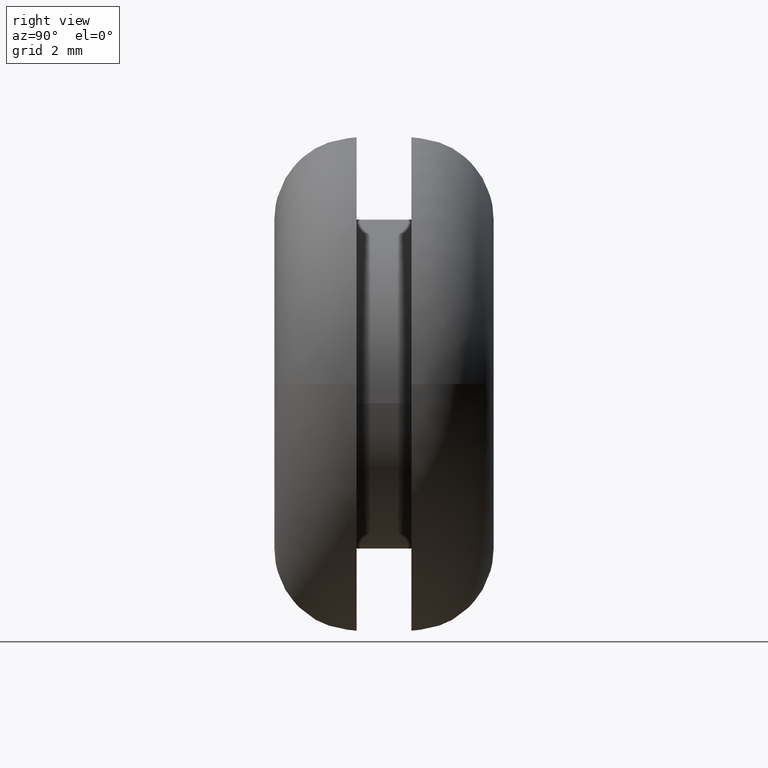
[diagram: clean part render]
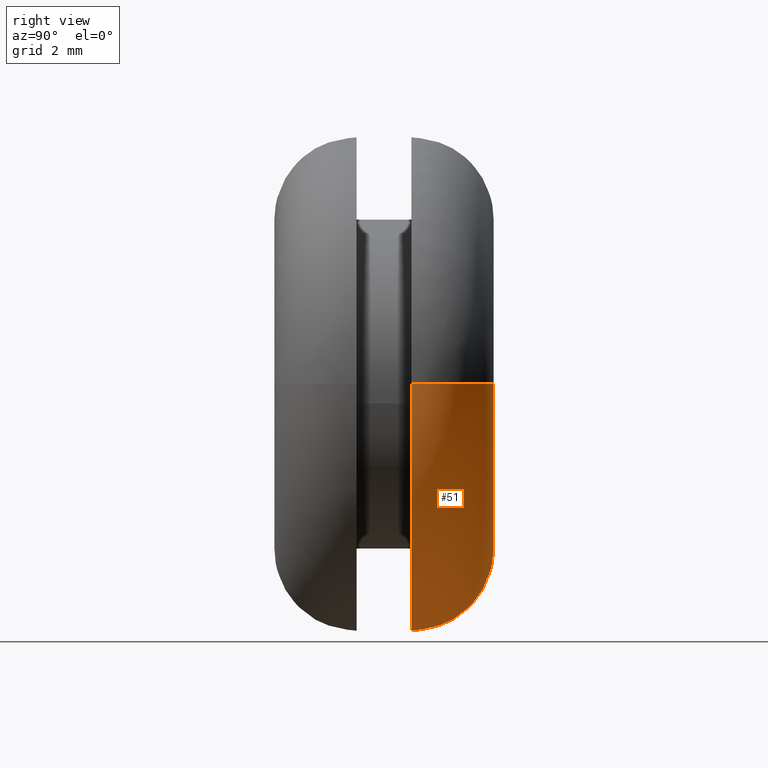
[diagram: same view with one face highlighted and labeled with its STEP entity id]
A machine part, right view. The second image highlights one B-rep face of the part: STEP entity #51.
In plain terms, the highlighted face is a freeform B-spline surface patch.
Its self-contained STEP definition (entity closure, byte-faithful):
#51=ADVANCED_FACE('',(#167),#166,.T.);
#166=( BOUNDED_SURFACE() B_SPLINE_SURFACE( 2,2,((#298,#299,#300,#301,#302),(#303,#304,#305,#306,#307),(#308,#309,#310,#311,#312),(#313,#314,#315,#316,#317),(#318,#319,#320,#321,#322)), .UNSPECIFIED.,.F.,.F.,.F.) B_SPLINE_SURFACE_WITH_KNOTS((3,2,3),(3,2,3),(-1.57079651073E+000,-1.04709932886E+000,2.94667014920E-004),(3.14159265359E+000,4.71238898038E+000,6.28318530718E+000), .UNSPECIFIED. ) GEOMETRIC_REPRESENTATION_ITEM() RATIONAL_B_SPLINE_SURFACE(((9.32988144219E-001,6.59722243544E-001,9.32988144219E-001,6.59722243544E-001,9.32988144219E-001),(9.32988120683E-001,6.59722226901E-001,9.32988120683E-001,6.59722226901E-001,9.32988120683E-001),(1.00000000000E+000,7.07106781187E-001,1.00000000000E+000,7.07106781187E-001,1.00000000000E+000),(8.65976288438E-001,6.12337705901E-001,8.65976288438E-001,6.12337705901E-001,8.65976288438E-001),(1.00000000000E+000,7.07106781187E-001,1.00000000000E+000,7.07106781187E-001,1.00000000000E+000))) REPRESENTATION_ITEM('') SURFACE() );
#167=FACE_OUTER_BOUND('',#323,.T.);
#298=CARTESIAN_POINT('',(5.99999943523E+000,8.00000000000E+000,-1.67660505305E-014));
#299=CARTESIAN_POINT('',(5.99999943523E+000,8.00000000000E+000,-5.99999943523E+000));
#300=CARTESIAN_POINT('',(2.12120991564E-014,8.00000000000E+000,-5.99999943523E+000));
#301=CARTESIAN_POINT('',(-5.99999943523E+000,8.00000000000E+000,-5.99999943523E+000));
#302=CARTESIAN_POINT('',(-5.99999943523E+000,8.00000000000E+000,-1.52965230442E-014));
#303=CARTESIAN_POINT('',(6.80400522884E+000,8.00000015136E+000,-1.68645080256E-014));
#304=CARTESIAN_POINT('',(6.80400522884E+000,8.00000015136E+000,-6.80400522884E+000));
#305=CARTESIAN_POINT('',(2.11136266308E-014,8.00000015136E+000,-6.80400522884E+000));
#306=CARTESIAN_POINT('',(-6.80400522884E+000,8.00000015136E+000,-6.80400522884E+000));
#307=CARTESIAN_POINT('',(-6.80400522884E+000,8.00000015136E+000,-1.51980624187E-014));
#308=CARTESIAN_POINT('',(7.50025518188E+000,7.59792886531E+000,-2.11076021331E-014));
#309=CARTESIAN_POINT('',(7.50025518188E+000,7.59792886531E+000,-7.50025518188E+000));
#310=CARTESIAN_POINT('',(5.67972409791E-014,7.59792886531E+000,-7.50025518188E+000));
#311=CARTESIAN_POINT('',(-7.50025518188E+000,7.59792886531E+000,-7.50025518188E+000));
#312=CARTESIAN_POINT('',(-7.50025518188E+000,7.59792886531E+000,-1.92706301029E-014));
#313=CARTESIAN_POINT('',(9.00051036377E+000,6.73155964296E+000,-3.02504737330E-014));
#314=CARTESIAN_POINT('',(9.00051036377E+000,6.73155964296E+000,-9.00051036377E+000));
#315=CARTESIAN_POINT('',(1.33687052031E-013,6.73155964296E+000,-9.00051036377E+000));
#316=CARTESIAN_POINT('',(-9.00051036377E+000,6.73155964296E+000,-9.00051036377E+000));
#317=CARTESIAN_POINT('',(-9.00051036377E+000,6.73155964296E+000,-2.80460572971E-014));
#318=CARTESIAN_POINT('',(8.99999986976E+000,4.99911599897E+000,-4.81656614688E-014));
#319=CARTESIAN_POINT('',(8.99999986976E+000,4.99911599897E+000,-8.99999986976E+000));
#320=CARTESIAN_POINT('',(2.87807955134E-013,4.99911599897E+000,-8.99999986976E+000));
#321=CARTESIAN_POINT('',(-8.99999986976E+000,4.99911599897E+000,-8.99999986976E+000));
#322=CARTESIAN_POINT('',(-8.99999986976E+000,4.99911599897E+000,-4.59613700638E-014));
#323=EDGE_LOOP('',(#391,#392,#393,#394,#395,#396,#397));
#391=ORIENTED_EDGE('',*,*,#399,.F.);
#392=ORIENTED_EDGE('',*,*,#398,.F.);
#393=ORIENTED_EDGE('',*,*,#402,.F.);
#394=ORIENTED_EDGE('',*,*,#433,.F.);
#395=ORIENTED_EDGE('',*,*,#406,.T.);
#396=ORIENTED_EDGE('',*,*,#408,.T.);
#397=ORIENTED_EDGE('',*,*,#434,.T.);
#398=EDGE_CURVE('',#435,#436,#437,.T.);
#399=EDGE_CURVE('',#436,#443,#444,.T.);
#402=EDGE_CURVE('',#457,#435,#464,.T.);
#406=EDGE_CURVE('',#491,#492,#493,.T.);
#408=EDGE_CURVE('',#492,#499,#506,.T.);
#433=EDGE_CURVE('',#491,#457,#674,.T.);
#434=EDGE_CURVE('',#499,#443,#680,.T.);
#435=VERTEX_POINT('',#686);
#436=VERTEX_POINT('',#687);
#437=CIRCLE('',#691,8.99999999999E+000);
#443=VERTEX_POINT('',#692);
#444=CIRCLE('',#696,8.99999999999E+000);
#457=VERTEX_POINT('',#702);
#464=CIRCLE('',#710,8.99999999999E+000);
#491=VERTEX_POINT('',#726);
#492=VERTEX_POINT('',#727);
#493=CIRCLE('',#731,6.00000000039E+000);
#499=VERTEX_POINT('',#732);
#506=CIRCLE('',#740,6.00000000039E+000);
#674=(BOUNDED_CURVE() B_SPLINE_CURVE(2,(#849,#850,#851,#852,#853),.UNSPECIFIED.,.F.,.F.) B_SPLINE_CURVE_WITH_KNOTS((3,2,3),(-1.57079631639E+000,-1.04709932886E+000,-1.18516572379E-005),.UNSPECIFIED.) CURVE() GEOMETRIC_REPRESENTATION_ITEM() RATIONAL_B_SPLINE_CURVE((9.32988144219E-001,9.32988145550E-001,1.00000000000E+000,8.66015510326E-001,9.99921579180E-001)) REPRESENTATION_ITEM('') );
#680=(BOUNDED_CURVE() B_SPLINE_CURVE(2,(#854,#855,#856,#857,#858),.UNSPECIFIED.,.F.,.F.) B_SPLINE_CURVE_WITH_KNOTS((3,2,3),(-1.57079651073E+000,-1.04709932886E+000,2.94667014920E-004),.UNSPECIFIED.) CURVE() GEOMETRIC_REPRESENTATION_ITEM() RATIONAL_B_SPLINE_CURVE((9.32988144219E-001,9.32988120683E-001,1.00000000000E+000,8.65976288438E-001,1.00000000000E+000)) REPRESENTATION_ITEM('') );
#686=CARTESIAN_POINT('',(0.00000000000E+000,5.00000000000E+000,-9.00000000000E+000));
#687=CARTESIAN_POINT('',(8.93980539481E+000,4.99999413509E+000,-1.03917250863E+000));
#688=CARTESIAN_POINT('',(-4.23927559723E-012,4.99999706754E+000,-1.01669783703E-011));
#689=DIRECTION('',(-3.65897112517E-007,-1.00000000000E+000,-3.25828545577E-007));
#690=DIRECTION('',(-4.71030621915E-013,-3.25828545577E-007,1.00000000000E+000));
#691=AXIS2_PLACEMENT_3D('',#688,#689,#690);
#692=CARTESIAN_POINT('',(8.99999999998E+000,4.99999445622E+000,9.78850653478E-006));
#693=CARTESIAN_POINT('',(-2.05080397109E-012,4.99999706754E+000,1.00102148792E-011));
#694=DIRECTION('',(-2.90147797382E-007,-1.00000000000E+000,3.25828545244E-007));
#695=DIRECTION('',(-9.93311710536E-001,3.25828545675E-007,1.15463612071E-001));
#696=AXIS2_PLACEMENT_3D('',#693,#694,#695);
#702=CARTESIAN_POINT('',(-8.99999999999E+000,4.99999411331E+000,3.79724600000E-008));
#707=CARTESIAN_POINT('',(2.85194090566E-012,4.99999705666E+000,-8.70503669148E-012));
#708=DIRECTION('',(3.27038292942E-007,-1.00000000000E+000,-3.27038294710E-007));
#709=DIRECTION('',(1.00000000000E+000,3.27038294322E-007,-4.22012944853E-009));
#710=AXIS2_PLACEMENT_3D('',#707,#708,#709);
#726=CARTESIAN_POINT('',(-6.00000000056E+000,8.00000000000E+000,-5.34344452769E-009));
#727=CARTESIAN_POINT('',(-3.21964677141E-015,8.00000000000E+000,-6.00000000077E+000));
#728=CARTESIAN_POINT('',(-1.74684267051E-010,8.00000000000E+000,-3.85132814529E-010));
#729=DIRECTION('',(3.08192176609E-016,-1.00000000000E+000,2.65130489284E-015));
#730=DIRECTION('',(2.91138640973E-011,-2.65130489283E-015,-1.00000000000E+000));
#731=AXIS2_PLACEMENT_3D('',#728,#729,#730);
#732=CARTESIAN_POINT('',(6.00000000021E+000,8.00000000000E+000,1.38409316695E-009));
#737=CARTESIAN_POINT('',(-1.74684267051E-010,8.00000000000E+000,-3.85132814529E-010));
#738=DIRECTION('',(3.08192176609E-016,-1.00000000000E+000,2.65130489284E-015));
#739=DIRECTION('',(2.91138640973E-011,-2.65130489283E-015,-1.00000000000E+000));
#740=AXIS2_PLACEMENT_3D('',#737,#738,#739);
#849=CARTESIAN_POINT('',(-6.00000003195E+000,8.00000000000E+000,-1.52965229711E-014));
#850=CARTESIAN_POINT('',(-6.80400550578E+000,7.99999999144E+000,-1.51980640385E-014));
#851=CARTESIAN_POINT('',(-7.50025518188E+000,7.59792886531E+000,-1.92706301029E-014));
#852=CARTESIAN_POINT('',(-9.00000338903E+000,6.73185241136E+000,-2.80430918550E-014));
#853=CARTESIAN_POINT('',(-8.99999999999E+000,4.99999412937E+000,-4.59522892758E-014));
#854=CARTESIAN_POINT('',(5.99999943523E+000,8.00000000000E+000,-1.67660505305E-014));
#855=CARTESIAN_POINT('',(6.80400522884E+000,8.00000015136E+000,-1.68645080256E-014));
#856=CARTESIAN_POINT('',(7.50025518188E+000,7.59792886531E+000,-2.11076021331E-014));
#857=CARTESIAN_POINT('',(9.00051036377E+000,6.73155964296E+000,-3.02504737330E-014));
#858=CARTESIAN_POINT('',(8.99999986976E+000,4.99911599897E+000,-4.81656614688E-014));